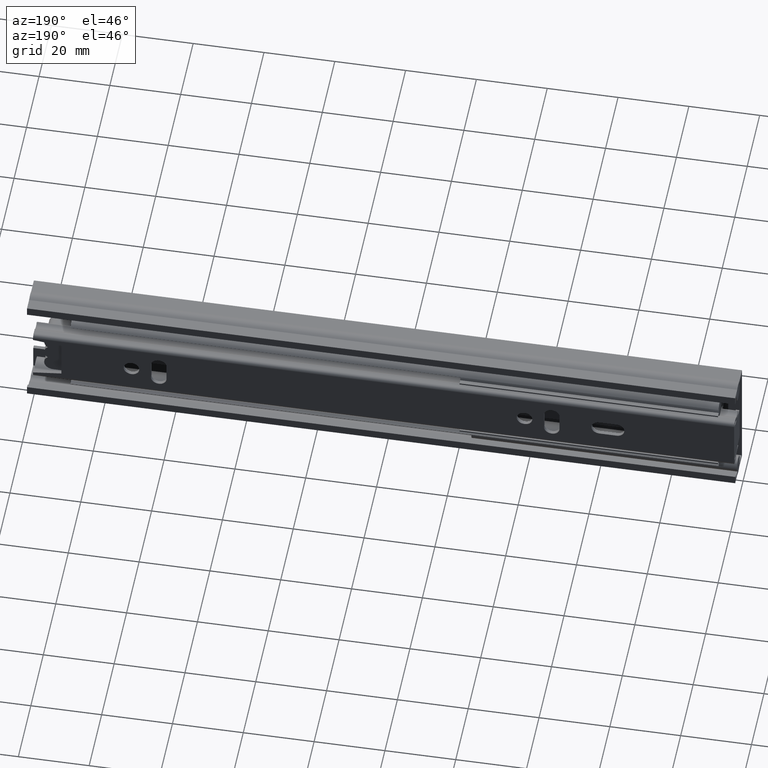
[diagram: clean part render]
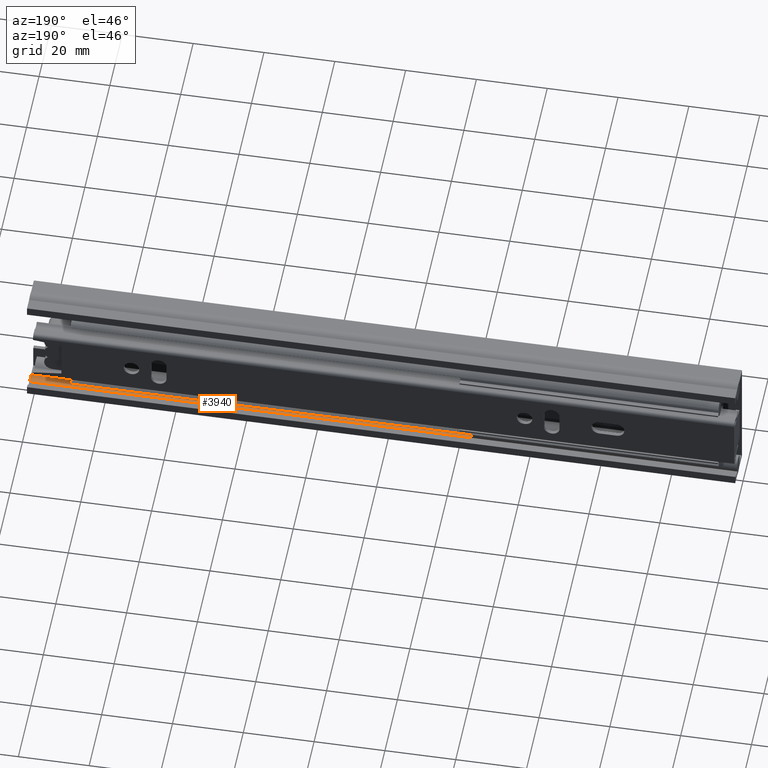
[diagram: same view with one face highlighted and labeled with its STEP entity id]
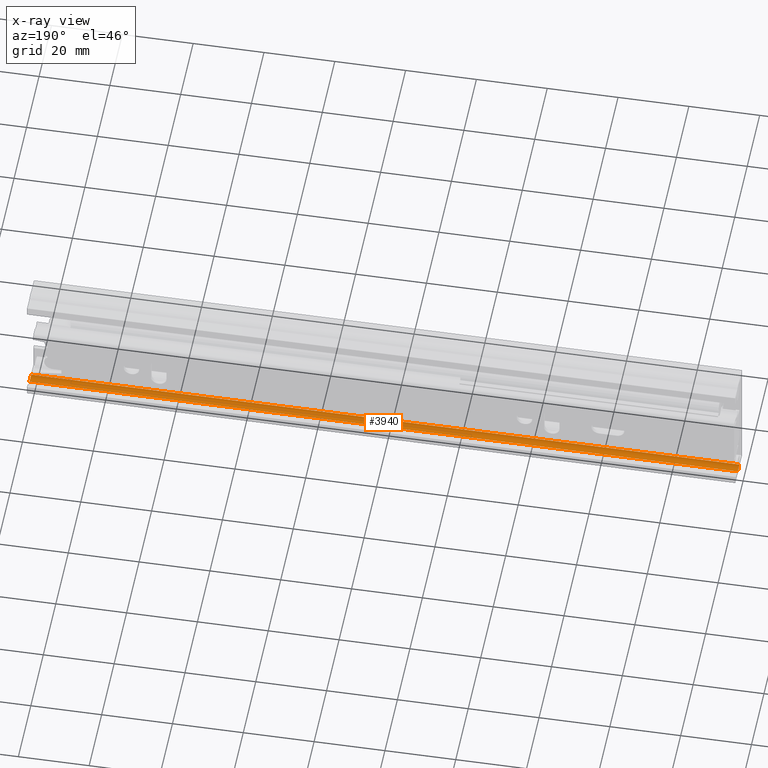
[diagram: x-ray of the same camera — body ghosted, the highlighted face saturated]
A machine part, auxiliary view. The second image highlights one B-rep face of the part: STEP entity #3940.
The next image is the same camera in x-ray: the body ghosted, the highlighted face saturated — about 0% of this face is hidden behind the body in this view.
In plain terms, the highlighted cylindrical surface (edge-blend (fillet) strip) has radius 2.25 mm, axis along (1, 0, 0).
Its self-contained STEP definition (entity closure, byte-faithful):
#84=CYLINDRICAL_SURFACE('',#4217,2.25);
#249=FACE_OUTER_BOUND('',#483,.T.);
#483=EDGE_LOOP('',(#3038,#3039,#3040,#3041));
#800=LINE('',#6066,#1226);
#802=LINE('',#6072,#1228);
#1226=VECTOR('',#4892,200.);
#1228=VECTOR('',#4898,200.);
#1546=CIRCLE('',#4218,2.25);
#1547=CIRCLE('',#4219,2.25);
#1790=VERTEX_POINT('',#6063);
#1791=VERTEX_POINT('',#6065);
#1792=VERTEX_POINT('',#6069);
#1793=VERTEX_POINT('',#6071);
#2248=EDGE_CURVE('',#1791,#1790,#800,.T.);
#2250=EDGE_CURVE('',#1792,#1790,#1546,.T.);
#2251=EDGE_CURVE('',#1793,#1792,#802,.T.);
#2252=EDGE_CURVE('',#1791,#1793,#1547,.T.);
#3038=ORIENTED_EDGE('',*,*,#2248,.T.);
#3039=ORIENTED_EDGE('',*,*,#2250,.F.);
#3040=ORIENTED_EDGE('',*,*,#2251,.F.);
#3041=ORIENTED_EDGE('',*,*,#2252,.F.);
#3940=ADVANCED_FACE('',(#249),#84,.F.);
#4217=AXIS2_PLACEMENT_3D('',#6068,#4894,#4895);
#4218=AXIS2_PLACEMENT_3D('',#6070,#4896,#4897);
#4219=AXIS2_PLACEMENT_3D('',#6073,#4899,#4900);
#4892=DIRECTION('',(1.,0.,0.));
#4894=DIRECTION('center_axis',(1.,0.,0.));
#4895=DIRECTION('ref_axis',(0.,0.600000000000004,0.799999999999997));
#4896=DIRECTION('center_axis',(-1.,0.,0.));
#4897=DIRECTION('ref_axis',(0.,0.600000000000004,0.799999999999997));
#4898=DIRECTION('',(1.,0.,0.));
#4899=DIRECTION('center_axis',(1.,0.,0.));
#4900=DIRECTION('ref_axis',(0.,0.600000000000004,0.799999999999997));
#6063=CARTESIAN_POINT('',(100.,4.64999999999999,-16.));
#6065=CARTESIAN_POINT('',(-100.,4.64999999999999,-16.));
#6066=CARTESIAN_POINT('',(0.,4.64999999999999,-16.));
#6068=CARTESIAN_POINT('Origin',(0.,6.00000000000001,-14.2));
#6069=CARTESIAN_POINT('',(100.,7.34999999999999,-16.));
#6070=CARTESIAN_POINT('Origin',(100.,6.00000000000001,-14.2));
#6071=CARTESIAN_POINT('',(-100.,7.34999999999999,-16.));
#6072=CARTESIAN_POINT('',(0.,7.34999999999999,-16.));
#6073=CARTESIAN_POINT('Origin',(-100.,6.00000000000001,-14.2));